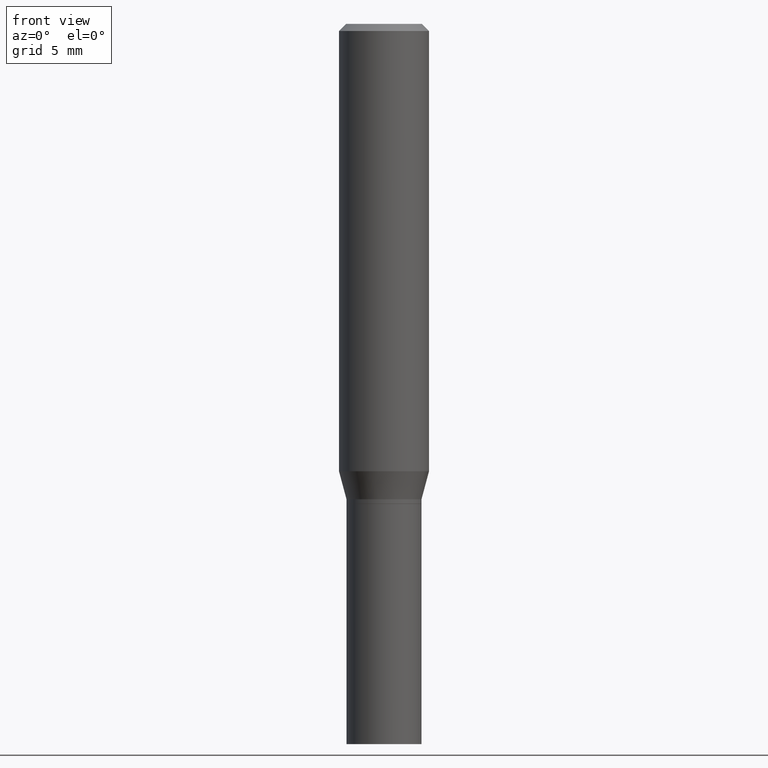
[diagram: clean part render]
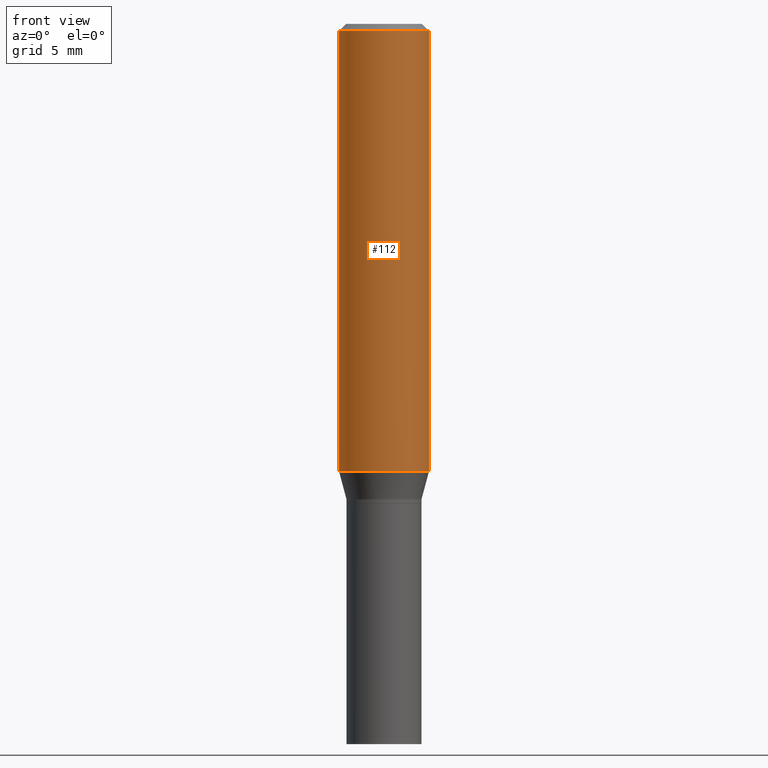
[diagram: same view with one face highlighted and labeled with its STEP entity id]
A machine part, front view. The second image highlights one B-rep face of the part: STEP entity #112.
In plain terms, the highlighted cylindrical surface (partial cylindrical patch) has radius 2.3813 mm, axis along (-0, 0, 1).
Its self-contained STEP definition (entity closure, byte-faithful):
#3 = EDGE_CURVE ( 'NONE', #154, #230, #199, .T. ) ;
#18 = CARTESIAN_POINT ( 'NONE',  ( -0.09375000000000001388, -9.863727894979499703E-16, -0.01499999999999999944 ) ) ;
#31 = DIRECTION ( 'NONE',  ( -2.445468806185136597E-29, 3.491481338843145583E-15, 1.000000000000000000 ) ) ;
#50 = ORIENTED_EDGE ( 'NONE', *, *, #192, .T. ) ;
#55 = EDGE_LOOP ( 'NONE', ( #117, #218, #50, #457 ) ) ;
#57 = CARTESIAN_POINT ( 'NONE',  ( 2.278182611636715174E-29, -3.252640988463440710E-15, -0.9315934048615475138 ) ) ;
#88 = LINE ( 'NONE', #378, #97 ) ;
#97 = VECTOR ( 'NONE', #416, 39.37007874015748143 ) ;
#110 = DIRECTION ( 'NONE',  ( 1.000000000000000000, -6.982962677686266711E-15, 0.000000000000000000 ) ) ;
#112 = ADVANCED_FACE ( 'NONE', ( #453 ), #137, .T. ) ;
#117 = ORIENTED_EDGE ( 'NONE', *, *, #3, .F. ) ;
#120 = DIRECTION ( 'NONE',  ( -2.445468806185136597E-29, 3.491481338843145583E-15, 1.000000000000000000 ) ) ;
#137 = CYLINDRICAL_SURFACE ( 'NONE', #383, 0.09375000000000001388 ) ;
#142 = DIRECTION ( 'NONE',  ( 1.000000000000000000, -6.982962677686265922E-15, 0.000000000000000000 ) ) ;
#148 = VECTOR ( 'NONE', #340, 39.37007874015748143 ) ;
#154 = VERTEX_POINT ( 'NONE', #316 ) ;
#157 = CARTESIAN_POINT ( 'NONE',  ( -0.09375000000000001388, 6.661338147750940229E-16, -4.611501647113973995E-30 ) ) ;
#192 = EDGE_CURVE ( 'NONE', #464, #327, #88, .T. ) ;
#199 = LINE ( 'NONE', #157, #148 ) ;
#201 = AXIS2_PLACEMENT_3D ( 'NONE', #57, #216, #110 ) ;
#216 = DIRECTION ( 'NONE',  ( -2.445468806185136597E-29, 3.491481338843145583E-15, 1.000000000000000000 ) ) ;
#218 = ORIENTED_EDGE ( 'NONE', *, *, #366, .T. ) ;
#224 = CARTESIAN_POINT ( 'NONE',  ( 0.09375000000000001388, -3.907293739496527425E-15, -0.9315934048615475138 ) ) ;
#230 = VERTEX_POINT ( 'NONE', #18 ) ;
#264 = CARTESIAN_POINT ( 'NONE',  ( 0.09375000000000001388, -7.070249711157346819E-16, -0.01499999999999999944 ) ) ;
#273 = CIRCLE ( 'NONE', #201, 0.09375000000000001388 ) ;
#281 = AXIS2_PLACEMENT_3D ( 'NONE', #426, #31, #142 ) ;
#316 = CARTESIAN_POINT ( 'NONE',  ( -0.09375000000000001388, -2.586507173688346391E-15, -0.9315934048615475138 ) ) ;
#327 = VERTEX_POINT ( 'NONE', #264 ) ;
#339 = CARTESIAN_POINT ( 'NONE',  ( 0.000000000000000000, 0.000000000000000000, 0.000000000000000000 ) ) ;
#340 = DIRECTION ( 'NONE',  ( -2.445468806185136877E-29, 3.491481338843145188E-15, 1.000000000000000000 ) ) ;
#359 = DIRECTION ( 'NONE',  ( 1.000000000000000000, -6.982962677686265922E-15, 4.876176775795935793E-29 ) ) ;
#366 = EDGE_CURVE ( 'NONE', #154, #464, #273, .T. ) ;
#378 = CARTESIAN_POINT ( 'NONE',  ( 0.09375000000000001388, -6.546527510330875041E-16, 4.571415727308690506E-30 ) ) ;
#383 = AXIS2_PLACEMENT_3D ( 'NONE', #339, #120, #359 ) ;
#416 = DIRECTION ( 'NONE',  ( -2.445468806185136877E-29, 3.491481338843145188E-15, 1.000000000000000000 ) ) ;
#426 = CARTESIAN_POINT ( 'NONE',  ( 3.668203209277705088E-31, -5.237222008264718399E-17, -0.01499999999999999944 ) ) ;
#442 = EDGE_CURVE ( 'NONE', #230, #327, #456, .T. ) ;
#453 = FACE_OUTER_BOUND ( 'NONE', #55, .T. ) ;
#456 = CIRCLE ( 'NONE', #281, 0.09375000000000001388 ) ;
#457 = ORIENTED_EDGE ( 'NONE', *, *, #442, .F. ) ;
#464 = VERTEX_POINT ( 'NONE', #224 ) ;